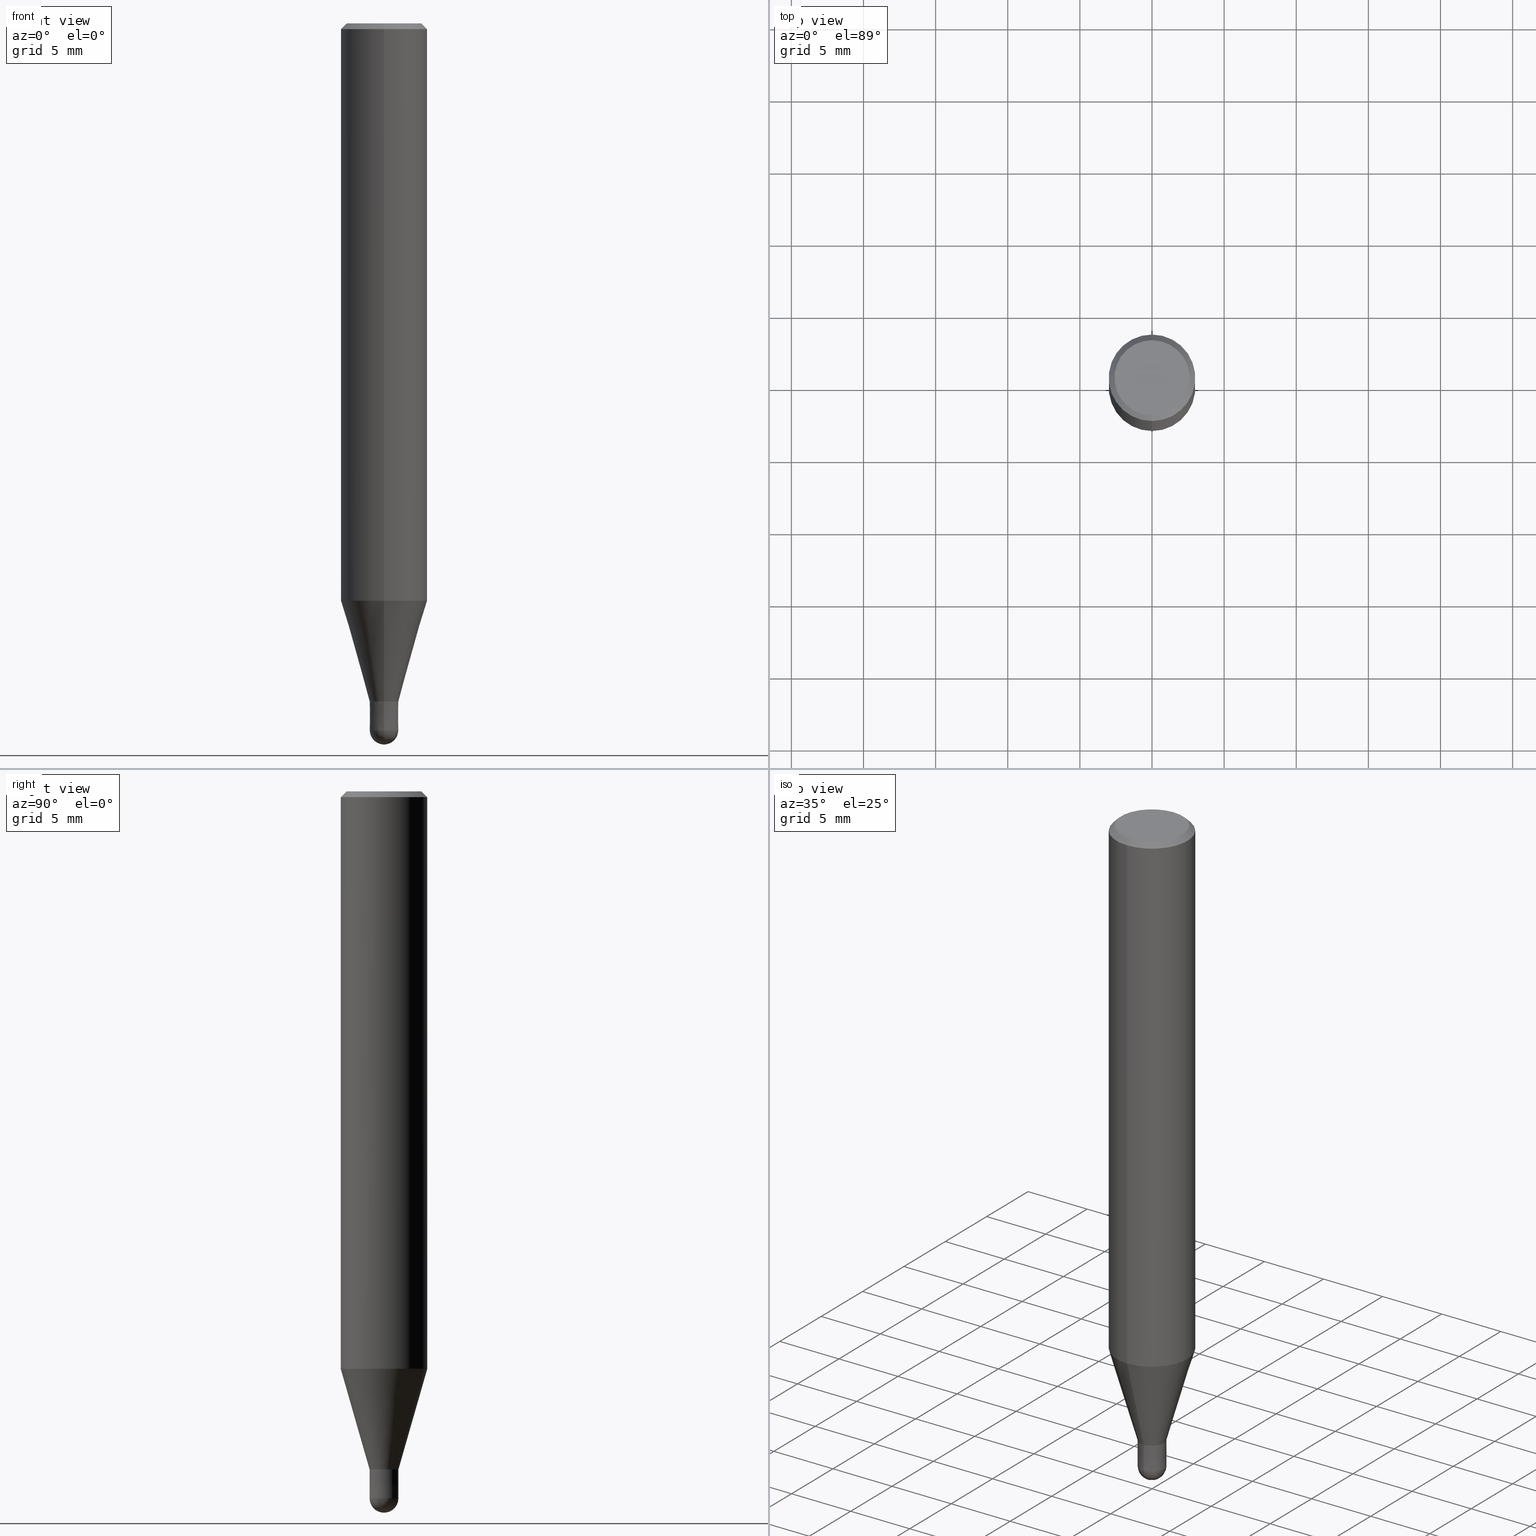
[diagram: canonical four-view strip — front | top / right | iso, engineering-drawing reading convention]
A machine part, canonical four-view strip (front | top / right | iso — engineering-drawing reading convention). The complete STEP part file that produces these views, byte-faithful:
ISO-10303-21;
HEADER;
FILE_DESCRIPTION(('no description'),'unknown implementation level');
FILE_NAME('HFB4020-0300-6-Huellk.stp','  ',('CIMSOURCE GmbH'),('CADClick - KiM GmbH - www.kimweb.de'),'unknown preprocess','ACIS','unknown authorization');
FILE_SCHEMA(('automotive_design'));
ENDSEC;
DATA;
#1=MECHANICAL_DESIGN_GEOMETRIC_PRESENTATION_REPRESENTATION(' ',(#14,#15,#16,#17,#18,#19,#20,#21,#22,#23,#24,#25,#26,#27,#28,#29,#30,#31,#32,#33,#34,#35,#36,#37,#38,#39,#40,#41,#42,#43,#44,#45,#46,#47,#48,#49,#50,#51,#52,#53,#54,#55,#56,#57,#58,#59,#60,#61,#62,#63,#64,#65,#66),#10);
#2=PRODUCT_DEFINITION_CONTEXT('',#67,'design');
#3=APPLICATION_PROTOCOL_DEFINITION('INTERNATIONAL STANDARD','automotive_design',1994,#67);
#4=PRODUCT_CATEGORY_RELATIONSHIP('NONE','NONE',#68,#69);
#5=SHAPE_DEFINITION_REPRESENTATION(#70,#71);
#6=PRODUCT_DEFINITION_CONTEXT('',#72,'design');
#7=APPLICATION_PROTOCOL_DEFINITION('INTERNATIONAL STANDARD','automotive_design',1994,#72);
#8=PRODUCT_CATEGORY_RELATIONSHIP('NONE','NONE',#73,#74);
#9=SHAPE_DEFINITION_REPRESENTATION(#75,#76);
#10= (GEOMETRIC_REPRESENTATION_CONTEXT(3)GLOBAL_UNCERTAINTY_ASSIGNED_CONTEXT((#79))GLOBAL_UNIT_ASSIGNED_CONTEXT((#81,#82,#83))REPRESENTATION_CONTEXT('NONE','WORKSPACE'));
#14=STYLED_ITEM('',(#85),#86);
#15=STYLED_ITEM('',(#87),#88);
#16=STYLED_ITEM('',(#89),#90);
#17=STYLED_ITEM('',(#91),#92);
#18=STYLED_ITEM('',(#93),#94);
#19=STYLED_ITEM('',(#95),#96);
#20=STYLED_ITEM('',(#97),#98);
#21=STYLED_ITEM('',(#99),#100);
#22=STYLED_ITEM('',(#101),#102);
#23=STYLED_ITEM('',(#103),#104);
#24=STYLED_ITEM('',(#105),#106);
#25=STYLED_ITEM('',(#107),#108);
#26=STYLED_ITEM('',(#109),#110);
#27=STYLED_ITEM('',(#111),#112);
#28=STYLED_ITEM('',(#113),#114);
#29=STYLED_ITEM('',(#115),#116);
#30=STYLED_ITEM('',(#117),#118);
#31=STYLED_ITEM('',(#119),#120);
#32=STYLED_ITEM('',(#121),#122);
#33=STYLED_ITEM('',(#123),#124);
#34=STYLED_ITEM('',(#125),#126);
#35=STYLED_ITEM('',(#127),#128);
#36=STYLED_ITEM('',(#129),#130);
#37=STYLED_ITEM('',(#131),#132);
#38=STYLED_ITEM('',(#133),#134);
#39=STYLED_ITEM('',(#135),#136);
#40=STYLED_ITEM('',(#137),#138);
#41=STYLED_ITEM('',(#139),#140);
#42=STYLED_ITEM('',(#141),#142);
#43=STYLED_ITEM('',(#143),#144);
#44=STYLED_ITEM('',(#145),#146);
#45=STYLED_ITEM('',(#147),#148);
#46=STYLED_ITEM('',(#149),#150);
#47=STYLED_ITEM('',(#151),#152);
#48=STYLED_ITEM('',(#153),#154);
#49=STYLED_ITEM('',(#155),#156);
#50=STYLED_ITEM('',(#157),#158);
#51=STYLED_ITEM('',(#159),#160);
#52=STYLED_ITEM('',(#161),#162);
#53=STYLED_ITEM('',(#163),#164);
#54=STYLED_ITEM('',(#165),#166);
#55=STYLED_ITEM('',(#167),#168);
#56=STYLED_ITEM('',(#169),#170);
#57=STYLED_ITEM('',(#171),#172);
#58=STYLED_ITEM('',(#173),#174);
#59=STYLED_ITEM('',(#175),#176);
#60=STYLED_ITEM('',(#177),#178);
#61=STYLED_ITEM('',(#179),#180);
#62=STYLED_ITEM('',(#181),#182);
#63=STYLED_ITEM('',(#183),#184);
#64=STYLED_ITEM('',(#185),#186);
#65=STYLED_ITEM('',(#187),#188);
#66=STYLED_ITEM('',(#189),#190);
#67=APPLICATION_CONTEXT(' ');
#68=PRODUCT_CATEGORY('part','NONE');
#69=PRODUCT_RELATED_PRODUCT_CATEGORY('detail',' ',(#191));
#70=PRODUCT_DEFINITION_SHAPE('NONE','NONE',#192);
#71=ADVANCED_BREP_SHAPE_REPRESENTATION('1',(#132,#193),#10);
#72=APPLICATION_CONTEXT(' ');
#73=PRODUCT_CATEGORY('part','NONE');
#74=PRODUCT_RELATED_PRODUCT_CATEGORY('detail',' ',(#194));
#75=PRODUCT_DEFINITION_SHAPE('NONE','NONE',#195);
#76=ADVANCED_BREP_SHAPE_REPRESENTATION('2',(#118,#196),#10);
#79=UNCERTAINTY_MEASURE_WITH_UNIT(LENGTH_MEASURE(1.0E-006),#81,'','');
#81= (CONVERSION_BASED_UNIT('MILLIMETRE',#199)LENGTH_UNIT()NAMED_UNIT(#202));
#82= (NAMED_UNIT(#204)PLANE_ANGLE_UNIT()SI_UNIT($,.RADIAN.));
#83= (NAMED_UNIT(#204)SOLID_ANGLE_UNIT()SI_UNIT($,.STERADIAN.));
#85=PRESENTATION_STYLE_ASSIGNMENT((#210));
#86=ADVANCED_FACE('',(#211),#212,.T.);
#87=PRESENTATION_STYLE_ASSIGNMENT((#213));
#88=ADVANCED_FACE('',(#214,#215),#216,.T.);
#89=PRESENTATION_STYLE_ASSIGNMENT((#217));
#90=VERTEX_POINT('',#218);
#91=PRESENTATION_STYLE_ASSIGNMENT((#219));
#92=ADVANCED_FACE('',(#220),#221,.T.);
#93=PRESENTATION_STYLE_ASSIGNMENT((#222));
#94=ADVANCED_FACE('',(#223),#224,.T.);
#95=PRESENTATION_STYLE_ASSIGNMENT((#225));
#96=ADVANCED_FACE('',(#226),#227,.T.);
#97=PRESENTATION_STYLE_ASSIGNMENT((#228));
#98=VERTEX_POINT('',#229);
#99=PRESENTATION_STYLE_ASSIGNMENT((#230));
#100=VERTEX_POINT('',#231);
#101=PRESENTATION_STYLE_ASSIGNMENT((#232));
#102=EDGE_CURVE('',#188,#170,#233,.T.);
#103=PRESENTATION_STYLE_ASSIGNMENT((#234));
#104=EDGE_CURVE('',#128,#120,#235,.T.);
#105=PRESENTATION_STYLE_ASSIGNMENT((#236));
#106=EDGE_CURVE('',#100,#182,#237,.T.);
#107=PRESENTATION_STYLE_ASSIGNMENT((#238));
#108=EDGE_CURVE('',#112,#160,#239,.T.);
#109=PRESENTATION_STYLE_ASSIGNMENT((#240));
#110=EDGE_CURVE('',#136,#168,#241,.T.);
#111=PRESENTATION_STYLE_ASSIGNMENT((#242));
#112=VERTEX_POINT('',#243);
#113=PRESENTATION_STYLE_ASSIGNMENT((#244));
#114=EDGE_CURVE('',#154,#160,#245,.T.);
#115=PRESENTATION_STYLE_ASSIGNMENT((#246));
#116=EDGE_CURVE('',#184,#170,#247,.T.);
#117=PRESENTATION_STYLE_ASSIGNMENT((#248));
#118=MANIFOLD_SOLID_BREP('2',#249);
#119=PRESENTATION_STYLE_ASSIGNMENT((#250));
#120=VERTEX_POINT('',#251);
#121=PRESENTATION_STYLE_ASSIGNMENT((#252));
#122=ADVANCED_FACE('',(#253),#254,.T.);
#123=PRESENTATION_STYLE_ASSIGNMENT((#255));
#124=EDGE_CURVE('',#168,#136,#256,.T.);
#125=PRESENTATION_STYLE_ASSIGNMENT((#257));
#126=EDGE_CURVE('',#100,#184,#258,.T.);
#127=PRESENTATION_STYLE_ASSIGNMENT((#259));
#128=VERTEX_POINT('',#260);
#129=PRESENTATION_STYLE_ASSIGNMENT((#261));
#130=EDGE_CURVE('',#154,#98,#262,.T.);
#131=PRESENTATION_STYLE_ASSIGNMENT((#263));
#132=MANIFOLD_SOLID_BREP('1',#264);
#133=PRESENTATION_STYLE_ASSIGNMENT((#265));
#134=ADVANCED_FACE('',(#266),#267,.T.);
#135=PRESENTATION_STYLE_ASSIGNMENT((#268));
#136=VERTEX_POINT('',#269);
#137=PRESENTATION_STYLE_ASSIGNMENT((#270));
#138=ADVANCED_FACE('',(#271),#272,.T.);
#139=PRESENTATION_STYLE_ASSIGNMENT((#273));
#140=EDGE_CURVE('',#98,#154,#274,.T.);
#141=PRESENTATION_STYLE_ASSIGNMENT((#275));
#142=EDGE_CURVE('',#112,#98,#276,.T.);
#143=PRESENTATION_STYLE_ASSIGNMENT((#277));
#144=EDGE_CURVE('',#160,#112,#278,.T.);
#145=PRESENTATION_STYLE_ASSIGNMENT((#279));
#146=EDGE_CURVE('',#188,#90,#280,.T.);
#147=PRESENTATION_STYLE_ASSIGNMENT((#281));
#148=ADVANCED_FACE('',(#282),#283,.T.);
#149=PRESENTATION_STYLE_ASSIGNMENT((#284));
#150=ADVANCED_FACE('',(#285),#286,.T.);
#151=PRESENTATION_STYLE_ASSIGNMENT((#287));
#152=EDGE_CURVE('',#128,#168,#288,.T.);
#153=PRESENTATION_STYLE_ASSIGNMENT((#289));
#154=VERTEX_POINT('',#290);
#155=PRESENTATION_STYLE_ASSIGNMENT((#291));
#156=EDGE_CURVE('',#90,#188,#292,.T.);
#157=PRESENTATION_STYLE_ASSIGNMENT((#293));
#158=ADVANCED_FACE('',(#294),#295,.T.);
#159=PRESENTATION_STYLE_ASSIGNMENT((#296));
#160=VERTEX_POINT('',#297);
#161=PRESENTATION_STYLE_ASSIGNMENT((#298));
#162=EDGE_CURVE('',#170,#182,#299,.T.);
#163=PRESENTATION_STYLE_ASSIGNMENT((#300));
#164=ADVANCED_FACE('',(#301),#302,.T.);
#165=PRESENTATION_STYLE_ASSIGNMENT((#303));
#166=EDGE_CURVE('',#170,#184,#304,.T.);
#167=PRESENTATION_STYLE_ASSIGNMENT((#305));
#168=VERTEX_POINT('',#306);
#169=PRESENTATION_STYLE_ASSIGNMENT((#307));
#170=VERTEX_POINT('',#308);
#171=PRESENTATION_STYLE_ASSIGNMENT((#309));
#172=EDGE_CURVE('',#120,#128,#310,.T.);
#173=PRESENTATION_STYLE_ASSIGNMENT((#311));
#174=EDGE_CURVE('',#184,#90,#312,.T.);
#175=PRESENTATION_STYLE_ASSIGNMENT((#313));
#176=EDGE_CURVE('',#136,#120,#314,.T.);
#177=PRESENTATION_STYLE_ASSIGNMENT((#315));
#178=ADVANCED_FACE('',(#316),#317,.T.);
#179=PRESENTATION_STYLE_ASSIGNMENT((#318));
#180=ADVANCED_FACE('',(#319),#320,.T.);
#181=PRESENTATION_STYLE_ASSIGNMENT((#321));
#182=VERTEX_POINT('',#322);
#183=PRESENTATION_STYLE_ASSIGNMENT((#323));
#184=VERTEX_POINT('',#324);
#185=PRESENTATION_STYLE_ASSIGNMENT((#325));
#186=EDGE_CURVE('',#182,#100,#326,.T.);
#187=PRESENTATION_STYLE_ASSIGNMENT((#327));
#188=VERTEX_POINT('',#328);
#189=PRESENTATION_STYLE_ASSIGNMENT((#329));
#190=EDGE_CURVE('',#136,#168,#330,.T.);
#191=PRODUCT('1','1','PART-1-DESC',(#331));
#192=PRODUCT_DEFINITION('NONE','NONE',#332,#2);
#193=AXIS2_PLACEMENT_3D('',#333,#334,#335);
#194=PRODUCT('2','2','PART-2-DESC',(#336));
#195=PRODUCT_DEFINITION('NONE','NONE',#337,#6);
#196=AXIS2_PLACEMENT_3D('',#338,#339,#340);
#199=LENGTH_MEASURE_WITH_UNIT(LENGTH_MEASURE(1.0),#341);
#202=DIMENSIONAL_EXPONENTS(1.0,0.0,0.0,0.0,0.0,0.0,0.0);
#204=DIMENSIONAL_EXPONENTS(0.0,0.0,0.0,0.0,0.0,0.0,0.0);
#210=SURFACE_STYLE_USAGE(.BOTH.,#342);
#211=FACE_OUTER_BOUND('',#343,.T.);
#212=SPHERICAL_SURFACE('',#344,1.0);
#213=SURFACE_STYLE_USAGE(.BOTH.,#345);
#214=FACE_OUTER_BOUND('',#346,.T.);
#215=FACE_BOUND('',#347,.T.);
#216=PLANE('',#348);
#217=POINT_STYLE(' ',#349,POSITIVE_LENGTH_MEASURE(1.0E-006),#350);
#218=CARTESIAN_POINT('',(3.18397651993818E-016,-2.6,0.0));
#219=SURFACE_STYLE_USAGE(.BOTH.,#351);
#220=FACE_OUTER_BOUND('',#352,.T.);
#221=CONICAL_SURFACE('',#353,2.8,0.78539816339745);
#222=SURFACE_STYLE_USAGE(.BOTH.,#354);
#223=FACE_OUTER_BOUND('',#355,.T.);
#224=PLANE('',#356);
#225=SURFACE_STYLE_USAGE(.BOTH.,#357);
#226=FACE_OUTER_BOUND('',#358,.T.);
#227=CONICAL_SURFACE('',#359,2.8,0.78539816339745);
#228=POINT_STYLE(' ',#360,POSITIVE_LENGTH_MEASURE(1.0E-006),#361);
#229=CARTESIAN_POINT('',(3.67375783114944E-016,-2.99995,-40.025));
#230=POINT_STYLE(' ',#362,POSITIVE_LENGTH_MEASURE(1.0E-006),#363);
#231=CARTESIAN_POINT('',(3.67381906146713E-016,-3.0,-40.025));
#232=CURVE_STYLE('',#364,POSITIVE_LENGTH_MEASURE(1.0E-006),#365);
#233=LINE('',#366,#367);
#234=CURVE_STYLE('',#368,POSITIVE_LENGTH_MEASURE(1.0E-006),#369);
#235=CIRCLE('',#370,0.9999);
#236=CURVE_STYLE('',#371,POSITIVE_LENGTH_MEASURE(1.0E-006),#372);
#237=CIRCLE('',#373,3.0);
#238=CURVE_STYLE('',#374,POSITIVE_LENGTH_MEASURE(1.0E-006),#375);
#239=CIRCLE('',#376,0.99995);
#240=CURVE_STYLE('',#377,POSITIVE_LENGTH_MEASURE(1.0E-006),#378);
#241=CIRCLE('',#379,1.0);
#242=POINT_STYLE(' ',#380,POSITIVE_LENGTH_MEASURE(1.0E-006),#381);
#243=CARTESIAN_POINT('',(1.22454512350469E-016,-0.99995,-47.0));
#244=CURVE_STYLE('',#382,POSITIVE_LENGTH_MEASURE(1.0E-006),#383);
#245=LINE('',#384,#385);
#246=CURVE_STYLE('',#386,POSITIVE_LENGTH_MEASURE(1.0E-006),#387);
#247=CIRCLE('',#388,3.0);
#248=SURFACE_STYLE_USAGE(.BOTH.,#389);
#249=CLOSED_SHELL('',(#122,#178,#150,#148,#86));
#250=POINT_STYLE(' ',#390,POSITIVE_LENGTH_MEASURE(1.0E-006),#391);
#251=CARTESIAN_POINT('',(1.224483893187E-016,-0.9999,-47.0));
#252=SURFACE_STYLE_USAGE(.BOTH.,#392);
#253=FACE_OUTER_BOUND('',#393,.T.);
#254=SPHERICAL_SURFACE('',#394,1.0);
#255=CURVE_STYLE('',#395,POSITIVE_LENGTH_MEASURE(1.0E-006),#396);
#256=CIRCLE('',#397,1.0);
#257=CURVE_STYLE('',#398,POSITIVE_LENGTH_MEASURE(1.0E-006),#399);
#258=LINE('',#400,#401);
#259=POINT_STYLE(' ',#402,POSITIVE_LENGTH_MEASURE(1.0E-006),#403);
#260=CARTESIAN_POINT('',(0.0,0.9999,-47.0));
#261=CURVE_STYLE('',#404,POSITIVE_LENGTH_MEASURE(1.0E-006),#405);
#262=CIRCLE('',#406,2.99995);
#263=SURFACE_STYLE_USAGE(.BOTH.,#407);
#264=CLOSED_SHELL('',(#158,#134,#96,#88,#94,#92,#180,#138,#164));
#265=SURFACE_STYLE_USAGE(.BOTH.,#408);
#266=FACE_OUTER_BOUND('',#409,.T.);
#267=CYLINDRICAL_SURFACE('',#410,3.0);
#268=POINT_STYLE(' ',#411,POSITIVE_LENGTH_MEASURE(1.0E-006),#412);
#269=CARTESIAN_POINT('',(1.22460635382238E-016,-1.0,-49.0));
#270=SURFACE_STYLE_USAGE(.BOTH.,#413);
#271=FACE_OUTER_BOUND('',#414,.T.);
#272=CONICAL_SURFACE('',#415,1.99995,0.279246180255813);
#273=CURVE_STYLE('',#416,POSITIVE_LENGTH_MEASURE(1.0E-006),#417);
#274=CIRCLE('',#418,2.99995);
#275=CURVE_STYLE('',#419,POSITIVE_LENGTH_MEASURE(1.0E-006),#420);
#276=LINE('',#421,#422);
#277=CURVE_STYLE('',#423,POSITIVE_LENGTH_MEASURE(1.0E-006),#424);
#278=CIRCLE('',#425,0.99995);
#279=CURVE_STYLE('',#426,POSITIVE_LENGTH_MEASURE(1.0E-006),#427);
#280=CIRCLE('',#428,2.6);
#281=SURFACE_STYLE_USAGE(.BOTH.,#429);
#282=FACE_OUTER_BOUND('',#430,.T.);
#283=CONICAL_SURFACE('',#431,0.99995,4.99999999583278E-005);
#284=SURFACE_STYLE_USAGE(.BOTH.,#432);
#285=FACE_OUTER_BOUND('',#433,.T.);
#286=PLANE('',#434);
#287=CURVE_STYLE('',#435,POSITIVE_LENGTH_MEASURE(1.0E-006),#436);
#288=LINE('',#437,#438);
#289=POINT_STYLE(' ',#439,POSITIVE_LENGTH_MEASURE(1.0E-006),#440);
#290=CARTESIAN_POINT('',(0.0,2.99995,-40.025));
#291=CURVE_STYLE('',#441,POSITIVE_LENGTH_MEASURE(1.0E-006),#442);
#292=CIRCLE('',#443,2.6);
#293=SURFACE_STYLE_USAGE(.BOTH.,#444);
#294=FACE_OUTER_BOUND('',#445,.T.);
#295=CONICAL_SURFACE('',#446,1.99995,0.279246180255813);
#296=POINT_STYLE(' ',#447,POSITIVE_LENGTH_MEASURE(1.0E-006),#448);
#297=CARTESIAN_POINT('',(0.0,0.99995,-47.0));
#298=CURVE_STYLE('',#449,POSITIVE_LENGTH_MEASURE(1.0E-006),#450);
#299=LINE('',#451,#452);
#300=SURFACE_STYLE_USAGE(.BOTH.,#453);
#301=FACE_OUTER_BOUND('',#454,.T.);
#302=PLANE('',#455);
#303=CURVE_STYLE('',#456,POSITIVE_LENGTH_MEASURE(1.0E-006),#457);
#304=CIRCLE('',#458,3.0);
#305=POINT_STYLE(' ',#459,POSITIVE_LENGTH_MEASURE(1.0E-006),#460);
#306=CARTESIAN_POINT('',(0.0,1.0,-49.0));
#307=POINT_STYLE(' ',#461,POSITIVE_LENGTH_MEASURE(1.0E-006),#462);
#308=CARTESIAN_POINT('',(0.0,3.0,-0.399999999999999));
#309=CURVE_STYLE('',#463,POSITIVE_LENGTH_MEASURE(1.0E-006),#464);
#310=CIRCLE('',#465,0.9999);
#311=CURVE_STYLE('',#466,POSITIVE_LENGTH_MEASURE(1.0E-006),#467);
#312=LINE('',#468,#469);
#313=CURVE_STYLE('',#470,POSITIVE_LENGTH_MEASURE(1.0E-006),#471);
#314=LINE('',#472,#473);
#315=SURFACE_STYLE_USAGE(.BOTH.,#474);
#316=FACE_OUTER_BOUND('',#475,.T.);
#317=CONICAL_SURFACE('',#476,0.99995,4.99999999583278E-005);
#318=SURFACE_STYLE_USAGE(.BOTH.,#477);
#319=FACE_OUTER_BOUND('',#478,.T.);
#320=CYLINDRICAL_SURFACE('',#479,3.0);
#321=POINT_STYLE(' ',#480,POSITIVE_LENGTH_MEASURE(1.0E-006),#481);
#322=CARTESIAN_POINT('',(0.0,3.0,-40.025));
#323=POINT_STYLE(' ',#482,POSITIVE_LENGTH_MEASURE(1.0E-006),#483);
#324=CARTESIAN_POINT('',(3.67381906146713E-016,-3.0,-0.399999999999999));
#325=CURVE_STYLE('',#484,POSITIVE_LENGTH_MEASURE(1.0E-006),#485);
#326=CIRCLE('',#486,3.0);
#327=POINT_STYLE(' ',#487,POSITIVE_LENGTH_MEASURE(1.0E-006),#488);
#328=CARTESIAN_POINT('',(0.0,2.6,0.0));
#329=CURVE_STYLE('',#489,POSITIVE_LENGTH_MEASURE(1.0E-006),#490);
#330=CIRCLE('',#491,1.0);
#331=PRODUCT_CONTEXT('',#67,'mechanical');
#332=PRODUCT_DEFINITION_FORMATION_WITH_SPECIFIED_SOURCE(' ','NONE',#191,.NOT_KNOWN.);
#333=CARTESIAN_POINT('',(0.0,0.0,0.0));
#334=DIRECTION('',(0.0,0.0,1.0));
#335=DIRECTION('',(1.0,0.0,0.0));
#336=PRODUCT_CONTEXT('',#72,'mechanical');
#337=PRODUCT_DEFINITION_FORMATION_WITH_SPECIFIED_SOURCE(' ','NONE',#194,.NOT_KNOWN.);
#338=CARTESIAN_POINT('',(0.0,0.0,0.0));
#339=DIRECTION('',(0.0,0.0,1.0));
#340=DIRECTION('',(1.0,0.0,0.0));
#341= (NAMED_UNIT(#202)LENGTH_UNIT()SI_UNIT(.MILLI.,.METRE.));
#342=SURFACE_SIDE_STYLE('',(#493));
#343=EDGE_LOOP('',(#494,#495));
#344=AXIS2_PLACEMENT_3D('',#496,#497,#498);
#345=SURFACE_SIDE_STYLE('',(#499));
#346=EDGE_LOOP('',(#500,#501));
#347=EDGE_LOOP('',(#502,#503));
#348=AXIS2_PLACEMENT_3D('',#504,#505,#506);
#349=PRE_DEFINED_MARKER('');
#350=COLOUR_RGB('',0.498039215803146,0.498039215803146,0.498039215803146);
#351=SURFACE_SIDE_STYLE('',(#507));
#352=EDGE_LOOP('',(#508,#509,#510,#511));
#353=AXIS2_PLACEMENT_3D('',#512,#513,#514);
#354=SURFACE_SIDE_STYLE('',(#515));
#355=EDGE_LOOP('',(#516,#517));
#356=AXIS2_PLACEMENT_3D('',#518,#519,#520);
#357=SURFACE_SIDE_STYLE('',(#521));
#358=EDGE_LOOP('',(#522,#523,#524,#525));
#359=AXIS2_PLACEMENT_3D('',#526,#527,#528);
#360=PRE_DEFINED_MARKER('');
#361=COLOUR_RGB('',0.498039215803146,0.498039215803146,0.498039215803146);
#362=PRE_DEFINED_MARKER('');
#363=COLOUR_RGB('',0.498039215803146,0.498039215803146,0.498039215803146);
#364=DRAUGHTING_PRE_DEFINED_CURVE_FONT('continuous');
#365=COLOUR_RGB('',0.498039215803146,0.498039215803146,0.498039215803146);
#366=CARTESIAN_POINT('',(-3.42889779070266E-016,2.8,-0.199999999999996));
#367=VECTOR('',#529,1.0);
#368=DRAUGHTING_PRE_DEFINED_CURVE_FONT('continuous');
#369=COLOUR_RGB('',0.800000011920929,0.800000011920929,0.800000011920929);
#370=AXIS2_PLACEMENT_3D('',#530,#531,#532);
#371=DRAUGHTING_PRE_DEFINED_CURVE_FONT('continuous');
#372=COLOUR_RGB('',0.498039215803146,0.498039215803146,0.498039215803146);
#373=AXIS2_PLACEMENT_3D('',#533,#534,#535);
#374=DRAUGHTING_PRE_DEFINED_CURVE_FONT('continuous');
#375=COLOUR_RGB('',0.498039215803146,0.498039215803146,0.498039215803146);
#376=AXIS2_PLACEMENT_3D('',#536,#537,#538);
#377=DRAUGHTING_PRE_DEFINED_CURVE_FONT('continuous');
#378=COLOUR_RGB('',0.800000011920929,0.800000011920929,0.800000011920929);
#379=AXIS2_PLACEMENT_3D('',#539,#540,#541);
#380=PRE_DEFINED_MARKER('');
#381=COLOUR_RGB('',0.498039215803146,0.498039215803146,0.498039215803146);
#382=DRAUGHTING_PRE_DEFINED_CURVE_FONT('continuous');
#383=COLOUR_RGB('',0.498039215803146,0.498039215803146,0.498039215803146);
#384=CARTESIAN_POINT('',(-2.44915147732706E-016,1.99995,-43.5125));
#385=VECTOR('',#542,1.0);
#386=DRAUGHTING_PRE_DEFINED_CURVE_FONT('continuous');
#387=COLOUR_RGB('',0.498039215803146,0.498039215803146,0.498039215803146);
#388=AXIS2_PLACEMENT_3D('',#543,#544,#545);
#389=SURFACE_SIDE_STYLE('',(#546));
#390=PRE_DEFINED_MARKER('');
#391=COLOUR_RGB('',0.800000011920929,0.800000011920929,0.800000011920929);
#392=SURFACE_SIDE_STYLE('',(#547));
#393=EDGE_LOOP('',(#548,#549));
#394=AXIS2_PLACEMENT_3D('',#550,#551,#552);
#395=DRAUGHTING_PRE_DEFINED_CURVE_FONT('continuous');
#396=COLOUR_RGB('',0.800000011920929,0.800000011920929,0.800000011920929);
#397=AXIS2_PLACEMENT_3D('',#553,#554,#555);
#398=DRAUGHTING_PRE_DEFINED_CURVE_FONT('continuous');
#399=COLOUR_RGB('',0.498039215803146,0.498039215803146,0.498039215803146);
#400=CARTESIAN_POINT('',(3.67381906146713E-016,-3.0,-20.2125));
#401=VECTOR('',#556,1.0);
#402=PRE_DEFINED_MARKER('');
#403=COLOUR_RGB('',0.800000011920929,0.800000011920929,0.800000011920929);
#404=DRAUGHTING_PRE_DEFINED_CURVE_FONT('continuous');
#405=COLOUR_RGB('',0.498039215803146,0.498039215803146,0.498039215803146);
#406=AXIS2_PLACEMENT_3D('',#557,#558,#559);
#407=SURFACE_SIDE_STYLE('',(#560));
#408=SURFACE_SIDE_STYLE('',(#561));
#409=EDGE_LOOP('',(#562,#563,#564,#565));
#410=AXIS2_PLACEMENT_3D('',#566,#567,#568);
#411=PRE_DEFINED_MARKER('');
#412=COLOUR_RGB('',0.800000011920929,0.800000011920929,0.800000011920929);
#413=SURFACE_SIDE_STYLE('',(#569));
#414=EDGE_LOOP('',(#570,#571,#572,#573));
#415=AXIS2_PLACEMENT_3D('',#574,#575,#576);
#416=DRAUGHTING_PRE_DEFINED_CURVE_FONT('continuous');
#417=COLOUR_RGB('',0.498039215803146,0.498039215803146,0.498039215803146);
#418=AXIS2_PLACEMENT_3D('',#577,#578,#579);
#419=DRAUGHTING_PRE_DEFINED_CURVE_FONT('continuous');
#420=COLOUR_RGB('',0.498039215803146,0.498039215803146,0.498039215803146);
#421=CARTESIAN_POINT('',(2.44915147732706E-016,-1.99995,-43.5125));
#422=VECTOR('',#580,1.0);
#423=DRAUGHTING_PRE_DEFINED_CURVE_FONT('continuous');
#424=COLOUR_RGB('',0.498039215803146,0.498039215803146,0.498039215803146);
#425=AXIS2_PLACEMENT_3D('',#581,#582,#583);
#426=DRAUGHTING_PRE_DEFINED_CURVE_FONT('continuous');
#427=COLOUR_RGB('',0.498039215803146,0.498039215803146,0.498039215803146);
#428=AXIS2_PLACEMENT_3D('',#584,#585,#586);
#429=SURFACE_SIDE_STYLE('',(#587));
#430=EDGE_LOOP('',(#588,#589,#590,#591));
#431=AXIS2_PLACEMENT_3D('',#592,#593,#594);
#432=SURFACE_SIDE_STYLE('',(#595));
#433=EDGE_LOOP('',(#596,#597));
#434=AXIS2_PLACEMENT_3D('',#598,#599,#600);
#435=DRAUGHTING_PRE_DEFINED_CURVE_FONT('continuous');
#436=COLOUR_RGB('',0.800000011920929,0.800000011920929,0.800000011920929);
#437=CARTESIAN_POINT('',(-1.22454512350469E-016,0.99995,-48.0));
#438=VECTOR('',#601,1.0);
#439=PRE_DEFINED_MARKER('');
#440=COLOUR_RGB('',0.498039215803146,0.498039215803146,0.498039215803146);
#441=DRAUGHTING_PRE_DEFINED_CURVE_FONT('continuous');
#442=COLOUR_RGB('',0.498039215803146,0.498039215803146,0.498039215803146);
#443=AXIS2_PLACEMENT_3D('',#602,#603,#604);
#444=SURFACE_SIDE_STYLE('',(#605));
#445=EDGE_LOOP('',(#606,#607,#608,#609));
#446=AXIS2_PLACEMENT_3D('',#610,#611,#612);
#447=PRE_DEFINED_MARKER('');
#448=COLOUR_RGB('',0.498039215803146,0.498039215803146,0.498039215803146);
#449=DRAUGHTING_PRE_DEFINED_CURVE_FONT('continuous');
#450=COLOUR_RGB('',0.498039215803146,0.498039215803146,0.498039215803146);
#451=CARTESIAN_POINT('',(-3.67381906146713E-016,3.0,-20.2125));
#452=VECTOR('',#613,1.0);
#453=SURFACE_SIDE_STYLE('',(#614));
#454=EDGE_LOOP('',(#615,#616));
#455=AXIS2_PLACEMENT_3D('',#617,#618,#619);
#456=DRAUGHTING_PRE_DEFINED_CURVE_FONT('continuous');
#457=COLOUR_RGB('',0.498039215803146,0.498039215803146,0.498039215803146);
#458=AXIS2_PLACEMENT_3D('',#620,#621,#622);
#459=PRE_DEFINED_MARKER('');
#460=COLOUR_RGB('',0.800000011920929,0.800000011920929,0.800000011920929);
#461=PRE_DEFINED_MARKER('');
#462=COLOUR_RGB('',0.498039215803146,0.498039215803146,0.498039215803146);
#463=DRAUGHTING_PRE_DEFINED_CURVE_FONT('continuous');
#464=COLOUR_RGB('',0.800000011920929,0.800000011920929,0.800000011920929);
#465=AXIS2_PLACEMENT_3D('',#623,#624,#625);
#466=DRAUGHTING_PRE_DEFINED_CURVE_FONT('continuous');
#467=COLOUR_RGB('',0.498039215803146,0.498039215803146,0.498039215803146);
#468=CARTESIAN_POINT('',(3.42889779070266E-016,-2.8,-0.199999999999996));
#469=VECTOR('',#626,1.0);
#470=DRAUGHTING_PRE_DEFINED_CURVE_FONT('continuous');
#471=COLOUR_RGB('',0.800000011920929,0.800000011920929,0.800000011920929);
#472=CARTESIAN_POINT('',(1.22454512350469E-016,-0.99995,-48.0));
#473=VECTOR('',#627,1.0);
#474=SURFACE_SIDE_STYLE('',(#628));
#475=EDGE_LOOP('',(#629,#630,#631,#632));
#476=AXIS2_PLACEMENT_3D('',#633,#634,#635);
#477=SURFACE_SIDE_STYLE('',(#636));
#478=EDGE_LOOP('',(#637,#638,#639,#640));
#479=AXIS2_PLACEMENT_3D('',#641,#642,#643);
#480=PRE_DEFINED_MARKER('');
#481=COLOUR_RGB('',0.498039215803146,0.498039215803146,0.498039215803146);
#482=PRE_DEFINED_MARKER('');
#483=COLOUR_RGB('',0.498039215803146,0.498039215803146,0.498039215803146);
#484=DRAUGHTING_PRE_DEFINED_CURVE_FONT('continuous');
#485=COLOUR_RGB('',0.498039215803146,0.498039215803146,0.498039215803146);
#486=AXIS2_PLACEMENT_3D('',#644,#645,#646);
#487=PRE_DEFINED_MARKER('');
#488=COLOUR_RGB('',0.498039215803146,0.498039215803146,0.498039215803146);
#489=DRAUGHTING_PRE_DEFINED_CURVE_FONT('continuous');
#490=COLOUR_RGB('',0.800000011920929,0.800000011920929,0.800000011920929);
#491=AXIS2_PLACEMENT_3D('',#647,#648,#649);
#493=SURFACE_STYLE_FILL_AREA(#650);
#494=ORIENTED_EDGE('',*,*,#110,.T.);
#495=ORIENTED_EDGE('',*,*,#124,.T.);
#496=CARTESIAN_POINT('',(0.0,0.0,-49.0));
#497=DIRECTION('',(0.0,1.0,0.0));
#498=DIRECTION('',(0.0,0.0,-1.0));
#499=SURFACE_STYLE_FILL_AREA(#651);
#500=ORIENTED_EDGE('',*,*,#186,.T.);
#501=ORIENTED_EDGE('',*,*,#106,.T.);
#502=ORIENTED_EDGE('',*,*,#130,.F.);
#503=ORIENTED_EDGE('',*,*,#140,.F.);
#504=CARTESIAN_POINT('',(0.0,1.5,-40.025));
#505=DIRECTION('',(0.0,0.0,-1.0));
#506=DIRECTION('',(0.0,1.0,0.0));
#507=SURFACE_STYLE_FILL_AREA(#652);
#508=ORIENTED_EDGE('',*,*,#102,.T.);
#509=ORIENTED_EDGE('',*,*,#116,.F.);
#510=ORIENTED_EDGE('',*,*,#174,.T.);
#511=ORIENTED_EDGE('',*,*,#156,.T.);
#512=CARTESIAN_POINT('',(0.0,0.0,-0.199999999999996));
#513=DIRECTION('',(0.0,-0.0,-1.0));
#514=DIRECTION('',(0.0,1.0,0.0));
#515=SURFACE_STYLE_FILL_AREA(#653);
#516=ORIENTED_EDGE('',*,*,#146,.F.);
#517=ORIENTED_EDGE('',*,*,#156,.F.);
#518=CARTESIAN_POINT('',(0.0,1.3,0.0));
#519=DIRECTION('',(-0.0,0.0,1.0));
#520=DIRECTION('',(0.0,-1.0,0.0));
#521=SURFACE_STYLE_FILL_AREA(#654);
#522=ORIENTED_EDGE('',*,*,#102,.F.);
#523=ORIENTED_EDGE('',*,*,#146,.T.);
#524=ORIENTED_EDGE('',*,*,#174,.F.);
#525=ORIENTED_EDGE('',*,*,#166,.F.);
#526=CARTESIAN_POINT('',(0.0,0.0,-0.199999999999996));
#527=DIRECTION('',(0.0,-0.0,-1.0));
#528=DIRECTION('',(0.0,1.0,0.0));
#529=DIRECTION('',(-8.65927457071937E-017,0.707106781186549,-0.707106781186546));
#530=CARTESIAN_POINT('',(0.0,0.0,-47.0));
#531=DIRECTION('',(0.0,0.0,-1.0));
#532=DIRECTION('',(0.0,1.0,0.0));
#533=CARTESIAN_POINT('',(0.0,0.0,-40.025));
#534=DIRECTION('',(0.0,0.0,-1.0));
#535=DIRECTION('',(0.0,1.0,0.0));
#536=CARTESIAN_POINT('',(0.0,0.0,-47.0));
#537=DIRECTION('',(0.0,0.0,-1.0));
#538=DIRECTION('',(0.0,1.0,0.0));
#539=CARTESIAN_POINT('',(0.0,0.0,-49.0));
#540=DIRECTION('',(1.0,0.0,1.22460635382238E-016));
#541=DIRECTION('',(-1.22460635382238E-016,0.0,1.0));
#542=DIRECTION('',(3.37539605616001E-017,-0.275631107549324,-0.961263487578267));
#543=CARTESIAN_POINT('',(0.0,0.0,-0.399999999999999));
#544=DIRECTION('',(0.0,0.0,-1.0));
#545=DIRECTION('',(0.0,1.0,0.0));
#546=SURFACE_STYLE_FILL_AREA(#655);
#547=SURFACE_STYLE_FILL_AREA(#656);
#548=ORIENTED_EDGE('',*,*,#110,.F.);
#549=ORIENTED_EDGE('',*,*,#190,.T.);
#550=CARTESIAN_POINT('',(0.0,0.0,-49.0));
#551=DIRECTION('',(0.0,1.0,0.0));
#552=DIRECTION('',(0.0,0.0,-1.0));
#553=CARTESIAN_POINT('',(0.0,0.0,-49.0));
#554=DIRECTION('',(0.0,0.0,-1.0));
#555=DIRECTION('',(0.0,1.0,0.0));
#556=DIRECTION('',(-0.0,-0.0,1.0));
#557=CARTESIAN_POINT('',(0.0,0.0,-40.025));
#558=DIRECTION('',(0.0,0.0,-1.0));
#559=DIRECTION('',(0.0,1.0,0.0));
#560=SURFACE_STYLE_FILL_AREA(#657);
#561=SURFACE_STYLE_FILL_AREA(#658);
#562=ORIENTED_EDGE('',*,*,#162,.F.);
#563=ORIENTED_EDGE('',*,*,#166,.T.);
#564=ORIENTED_EDGE('',*,*,#126,.F.);
#565=ORIENTED_EDGE('',*,*,#186,.F.);
#566=CARTESIAN_POINT('',(0.0,0.0,-20.2125));
#567=DIRECTION('',(-0.0,-0.0,1.0));
#568=DIRECTION('',(0.0,1.0,0.0));
#569=SURFACE_STYLE_FILL_AREA(#659);
#570=ORIENTED_EDGE('',*,*,#114,.T.);
#571=ORIENTED_EDGE('',*,*,#108,.F.);
#572=ORIENTED_EDGE('',*,*,#142,.T.);
#573=ORIENTED_EDGE('',*,*,#140,.T.);
#574=CARTESIAN_POINT('',(0.0,0.0,-43.5125));
#575=DIRECTION('',(-0.0,-0.0,1.0));
#576=DIRECTION('',(0.0,1.0,0.0));
#577=CARTESIAN_POINT('',(0.0,0.0,-40.025));
#578=DIRECTION('',(0.0,0.0,-1.0));
#579=DIRECTION('',(0.0,1.0,0.0));
#580=DIRECTION('',(3.37539605616001E-017,-0.275631107549324,0.961263487578267));
#581=CARTESIAN_POINT('',(0.0,0.0,-47.0));
#582=DIRECTION('',(0.0,0.0,-1.0));
#583=DIRECTION('',(0.0,1.0,0.0));
#584=CARTESIAN_POINT('',(0.0,0.0,0.0));
#585=DIRECTION('',(0.0,0.0,-1.0));
#586=DIRECTION('',(0.0,1.0,0.0));
#587=SURFACE_STYLE_FILL_AREA(#660);
#588=ORIENTED_EDGE('',*,*,#152,.T.);
#589=ORIENTED_EDGE('',*,*,#190,.F.);
#590=ORIENTED_EDGE('',*,*,#176,.T.);
#591=ORIENTED_EDGE('',*,*,#172,.T.);
#592=CARTESIAN_POINT('',(0.0,0.0,-48.0));
#593=DIRECTION('',(0.0,-0.0,-1.0));
#594=DIRECTION('',(0.0,1.0,0.0));
#595=SURFACE_STYLE_FILL_AREA(#661);
#596=ORIENTED_EDGE('',*,*,#104,.F.);
#597=ORIENTED_EDGE('',*,*,#172,.F.);
#598=CARTESIAN_POINT('',(0.0,0.49995,-47.0));
#599=DIRECTION('',(-0.0,0.0,1.0));
#600=DIRECTION('',(0.0,-1.0,0.0));
#601=DIRECTION('',(-6.12303176145742E-021,4.99999999374945E-005,-0.99999999875));
#602=CARTESIAN_POINT('',(0.0,0.0,0.0));
#603=DIRECTION('',(0.0,0.0,-1.0));
#604=DIRECTION('',(0.0,1.0,0.0));
#605=SURFACE_STYLE_FILL_AREA(#662);
#606=ORIENTED_EDGE('',*,*,#114,.F.);
#607=ORIENTED_EDGE('',*,*,#130,.T.);
#608=ORIENTED_EDGE('',*,*,#142,.F.);
#609=ORIENTED_EDGE('',*,*,#144,.F.);
#610=CARTESIAN_POINT('',(0.0,0.0,-43.5125));
#611=DIRECTION('',(-0.0,-0.0,1.0));
#612=DIRECTION('',(0.0,1.0,0.0));
#613=DIRECTION('',(0.0,0.0,-1.0));
#614=SURFACE_STYLE_FILL_AREA(#663);
#615=ORIENTED_EDGE('',*,*,#144,.T.);
#616=ORIENTED_EDGE('',*,*,#108,.T.);
#617=CARTESIAN_POINT('',(0.0,0.499975,-47.0));
#618=DIRECTION('',(0.0,0.0,-1.0));
#619=DIRECTION('',(0.0,1.0,0.0));
#620=CARTESIAN_POINT('',(0.0,0.0,-0.399999999999999));
#621=DIRECTION('',(0.0,0.0,-1.0));
#622=DIRECTION('',(0.0,1.0,0.0));
#623=CARTESIAN_POINT('',(0.0,0.0,-47.0));
#624=DIRECTION('',(0.0,0.0,-1.0));
#625=DIRECTION('',(0.0,1.0,0.0));
#626=DIRECTION('',(-8.65927457071937E-017,0.707106781186549,0.707106781186546));
#627=DIRECTION('',(-6.12303176145742E-021,4.99999999374945E-005,0.99999999875));
#628=SURFACE_STYLE_FILL_AREA(#664);
#629=ORIENTED_EDGE('',*,*,#152,.F.);
#630=ORIENTED_EDGE('',*,*,#104,.T.);
#631=ORIENTED_EDGE('',*,*,#176,.F.);
#632=ORIENTED_EDGE('',*,*,#124,.F.);
#633=CARTESIAN_POINT('',(0.0,0.0,-48.0));
#634=DIRECTION('',(0.0,-0.0,-1.0));
#635=DIRECTION('',(0.0,1.0,0.0));
#636=SURFACE_STYLE_FILL_AREA(#665);
#637=ORIENTED_EDGE('',*,*,#162,.T.);
#638=ORIENTED_EDGE('',*,*,#106,.F.);
#639=ORIENTED_EDGE('',*,*,#126,.T.);
#640=ORIENTED_EDGE('',*,*,#116,.T.);
#641=CARTESIAN_POINT('',(0.0,0.0,-20.2125));
#642=DIRECTION('',(-0.0,-0.0,1.0));
#643=DIRECTION('',(0.0,1.0,0.0));
#644=CARTESIAN_POINT('',(0.0,0.0,-40.025));
#645=DIRECTION('',(0.0,0.0,-1.0));
#646=DIRECTION('',(0.0,1.0,0.0));
#647=CARTESIAN_POINT('',(0.0,0.0,-49.0));
#648=DIRECTION('',(0.0,0.0,-1.0));
#649=DIRECTION('',(0.0,1.0,0.0));
#650=FILL_AREA_STYLE('',(#666));
#651=FILL_AREA_STYLE('',(#667));
#652=FILL_AREA_STYLE('',(#668));
#653=FILL_AREA_STYLE('',(#669));
#654=FILL_AREA_STYLE('',(#670));
#655=FILL_AREA_STYLE('',(#671));
#656=FILL_AREA_STYLE('',(#672));
#657=FILL_AREA_STYLE('',(#673));
#658=FILL_AREA_STYLE('',(#674));
#659=FILL_AREA_STYLE('',(#675));
#660=FILL_AREA_STYLE('',(#676));
#661=FILL_AREA_STYLE('',(#677));
#662=FILL_AREA_STYLE('',(#678));
#663=FILL_AREA_STYLE('',(#679));
#664=FILL_AREA_STYLE('',(#680));
#665=FILL_AREA_STYLE('',(#681));
#666=FILL_AREA_STYLE_COLOUR('',#682);
#667=FILL_AREA_STYLE_COLOUR('',#683);
#668=FILL_AREA_STYLE_COLOUR('',#684);
#669=FILL_AREA_STYLE_COLOUR('',#685);
#670=FILL_AREA_STYLE_COLOUR('',#686);
#671=FILL_AREA_STYLE_COLOUR('',#687);
#672=FILL_AREA_STYLE_COLOUR('',#688);
#673=FILL_AREA_STYLE_COLOUR('',#689);
#674=FILL_AREA_STYLE_COLOUR('',#690);
#675=FILL_AREA_STYLE_COLOUR('',#691);
#676=FILL_AREA_STYLE_COLOUR('',#692);
#677=FILL_AREA_STYLE_COLOUR('',#693);
#678=FILL_AREA_STYLE_COLOUR('',#694);
#679=FILL_AREA_STYLE_COLOUR('',#695);
#680=FILL_AREA_STYLE_COLOUR('',#696);
#681=FILL_AREA_STYLE_COLOUR('',#697);
#682=COLOUR_RGB('',0.800000011920929,0.800000011920929,0.800000011920929);
#683=COLOUR_RGB('',0.498039215803146,0.498039215803146,0.498039215803146);
#684=COLOUR_RGB('',0.498039215803146,0.498039215803146,0.498039215803146);
#685=COLOUR_RGB('',0.498039215803146,0.498039215803146,0.498039215803146);
#686=COLOUR_RGB('',0.498039215803146,0.498039215803146,0.498039215803146);
#687=COLOUR_RGB('',0.800000011920929,0.800000011920929,0.800000011920929);
#688=COLOUR_RGB('',0.800000011920929,0.800000011920929,0.800000011920929);
#689=COLOUR_RGB('',0.498039215803146,0.498039215803146,0.498039215803146);
#690=COLOUR_RGB('',0.498039215803146,0.498039215803146,0.498039215803146);
#691=COLOUR_RGB('',0.498039215803146,0.498039215803146,0.498039215803146);
#692=COLOUR_RGB('',0.800000011920929,0.800000011920929,0.800000011920929);
#693=COLOUR_RGB('',0.800000011920929,0.800000011920929,0.800000011920929);
#694=COLOUR_RGB('',0.498039215803146,0.498039215803146,0.498039215803146);
#695=COLOUR_RGB('',0.498039215803146,0.498039215803146,0.498039215803146);
#696=COLOUR_RGB('',0.800000011920929,0.800000011920929,0.800000011920929);
#697=COLOUR_RGB('',0.498039215803146,0.498039215803146,0.498039215803146);
#698=AXIS2_PLACEMENT_3D('PCS',#699,#700,#701);
#699=CARTESIAN_POINT('',(0.0,0.0,0.0));
#700=DIRECTION('',(0.0,0.0,1.0));
#701=DIRECTION('',(1.0,0.0,0.0));
#702=AXIS2_PLACEMENT_3D('CIP',#703,#704,#705);
#703=CARTESIAN_POINT('',(0.0,0.0,-50.0));
#704=DIRECTION('',(0.0,0.0,1.0));
#705=DIRECTION('',(1.0,0.0,0.0));
#706=AXIS2_PLACEMENT_3D('CRP',#707,#708,#709);
#707=CARTESIAN_POINT('',(-1.0,0.0,-50.0));
#708=DIRECTION('',(0.0,0.0,1.0));
#709=DIRECTION('',(1.0,0.0,0.0));
#710=AXIS2_PLACEMENT_3D('MCS',#711,#712,#713);
#711=CARTESIAN_POINT('',(0.0,0.0,-40.025));
#712=DIRECTION('',(0.0,0.0,1.0));
#713=DIRECTION('',(1.0,0.0,0.0));
#714=CONSTRUCTIVE_GEOMETRY_REPRESENTATION_RELATIONSHIP('coordinate systems',$,#71,#715);
#715=CONSTRUCTIVE_GEOMETRY_REPRESENTATION('coordinate systems',(#698,#702,#706,#710),#10);
ENDSEC;
END-ISO-10303-21;
